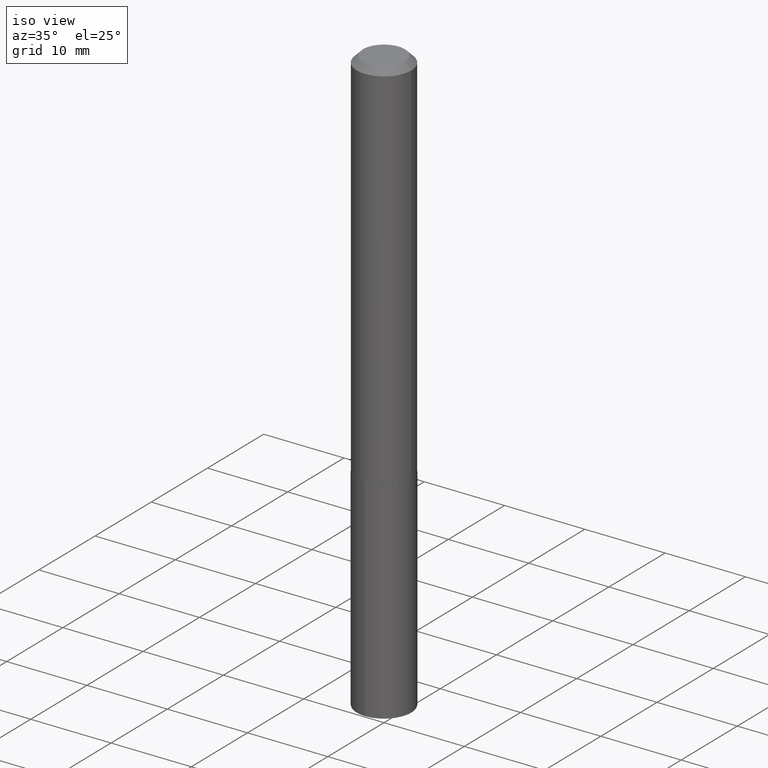
[diagram: clean part render]
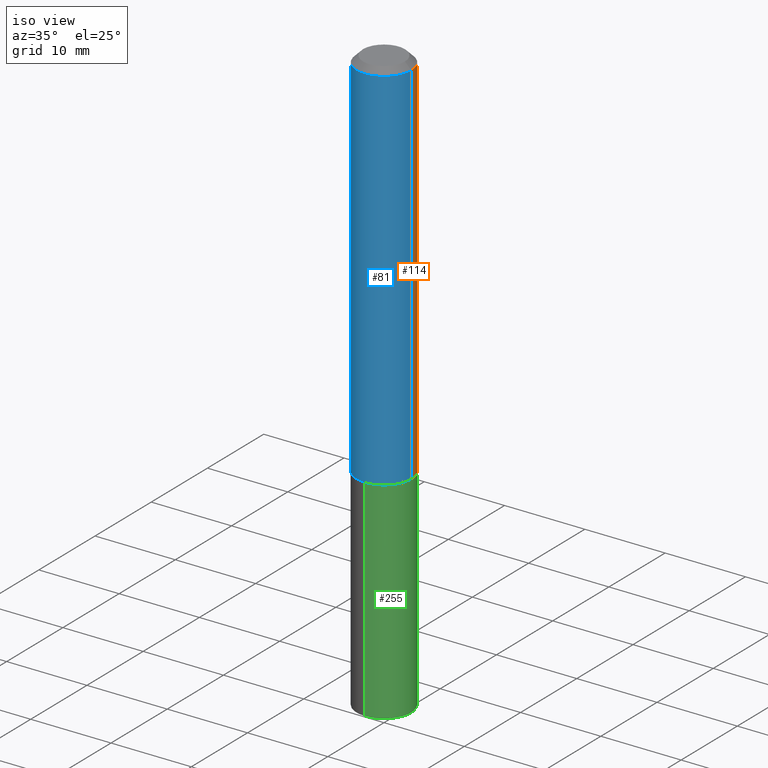
[diagram: same view with three faces highlighted in distinct colors, each labeled with its STEP entity id]
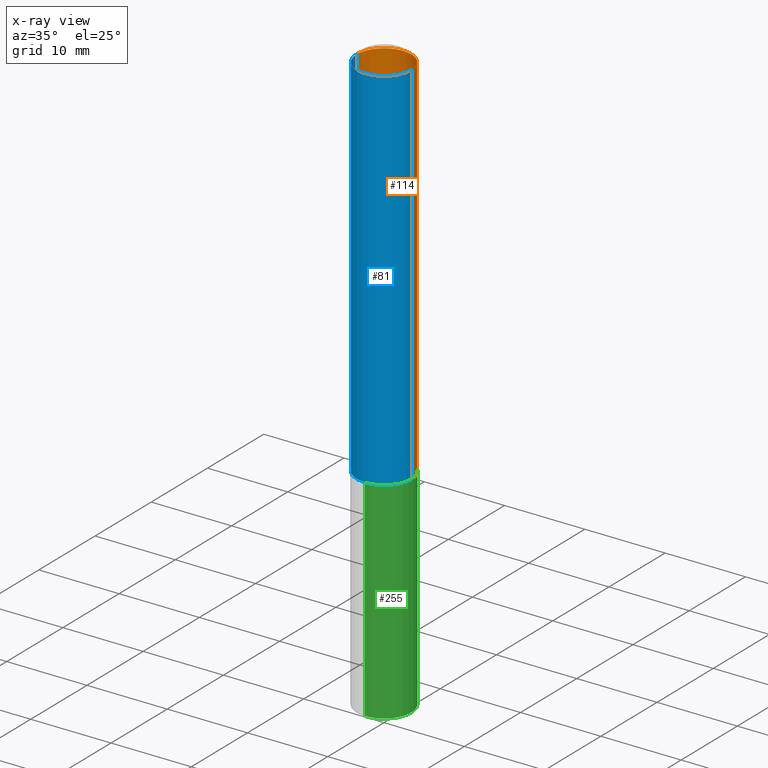
[diagram: x-ray of the same camera — body ghosted, the three highlighted faces saturated]
A machine part, iso view with three faces highlighted in distinct colors.
The next image is the same camera in x-ray (body ghosted, the three faces saturated) — at least one of them is partly hidden behind the body in this view.
Their STEP definitions:

[orange] entity #114 — the highlighted cylindrical surface (edge-blend (fillet) strip) has radius 3.3998 mm, axis along (-0, 0, 1).
#13 = EDGE_CURVE ( 'NONE', #368, #15, #123, .T. ) ;
#15 = VERTEX_POINT ( 'NONE', #282 ) ;
#19 = CYLINDRICAL_SURFACE ( 'NONE', #214, 0.1338500000000001078 ) ;
#21 = FACE_OUTER_BOUND ( 'NONE', #199, .T. ) ;
#48 = DIRECTION ( 'NONE',  ( -2.445468806185136597E-29, 3.491481338843145583E-15, 1.000000000000000000 ) ) ;
#52 = CARTESIAN_POINT ( 'NONE',  ( 4.504553540993022477E-29, -6.431308626149075527E-15, -1.842000000000000526 ) ) ;
#63 = AXIS2_PLACEMENT_3D ( 'NONE', #378, #193, #164 ) ;
#67 = EDGE_CURVE ( 'NONE', #105, #368, #381, .T. ) ;
#102 = VERTEX_POINT ( 'NONE', #205 ) ;
#105 = VERTEX_POINT ( 'NONE', #295 ) ;
#114 = ADVANCED_FACE ( 'NONE', ( #21 ), #19, .T. ) ;
#116 = CARTESIAN_POINT ( 'NONE',  ( 0.1338500000000001078, -9.346695544083075234E-16, 6.526762614402865288E-30 ) ) ;
#123 = CIRCLE ( 'NONE', #63, 0.1338499999999999968 ) ;
#124 = VECTOR ( 'NONE', #242, 39.37007874015748143 ) ;
#130 = CIRCLE ( 'NONE', #372, 0.1338500000000002466 ) ;
#139 = ORIENTED_EDGE ( 'NONE', *, *, #157, .T. ) ;
#149 = DIRECTION ( 'NONE',  ( -2.445468806185136597E-29, 3.491481338843145583E-15, 1.000000000000000000 ) ) ;
#151 = DIRECTION ( 'NONE',  ( -2.445468806185136877E-29, 3.491481338843145188E-15, 1.000000000000000000 ) ) ;
#157 = EDGE_CURVE ( 'NONE', #105, #102, #130, .T. ) ;
#164 = DIRECTION ( 'NONE',  ( 1.000000000000000000, -6.982962677686266711E-15, 0.000000000000000000 ) ) ;
#169 = ORIENTED_EDGE ( 'NONE', *, *, #13, .F. ) ;
#180 = DIRECTION ( 'NONE',  ( 1.000000000000000000, -6.982962677686268288E-15, 0.000000000000000000 ) ) ;
#184 = LINE ( 'NONE', #361, #124 ) ;
#189 = ORIENTED_EDGE ( 'NONE', *, *, #238, .T. ) ;
#193 = DIRECTION ( 'NONE',  ( -2.445468806185136597E-29, 3.491481338843145583E-15, 1.000000000000000000 ) ) ;
#199 = EDGE_LOOP ( 'NONE', ( #139, #189, #169, #318 ) ) ;
#205 = CARTESIAN_POINT ( 'NONE',  ( -0.1338500000000002466, -5.480247174334179676E-15, -1.842000000000000526 ) ) ;
#214 = AXIS2_PLACEMENT_3D ( 'NONE', #264, #48, #355 ) ;
#225 = VECTOR ( 'NONE', #151, 39.37007874015748143 ) ;
#238 = EDGE_CURVE ( 'NONE', #102, #15, #184, .T. ) ;
#242 = DIRECTION ( 'NONE',  ( -2.445468806185136877E-29, 3.491481338843145188E-15, 1.000000000000000000 ) ) ;
#264 = CARTESIAN_POINT ( 'NONE',  ( 0.000000000000000000, 0.000000000000000000, 0.000000000000000000 ) ) ;
#282 = CARTESIAN_POINT ( 'NONE',  ( -0.1338499999999999968, -2.319147257179065674E-15, -0.03125000000000021511 ) ) ;
#295 = CARTESIAN_POINT ( 'NONE',  ( 0.1338500000000002466, -7.365978180557384825E-15, -1.842000000000000526 ) ) ;
#318 = ORIENTED_EDGE ( 'NONE', *, *, #67, .F. ) ;
#355 = DIRECTION ( 'NONE',  ( 1.000000000000000000, -6.982962677686266711E-15, 4.876176775795935793E-29 ) ) ;
#361 = CARTESIAN_POINT ( 'NONE',  ( -0.1338500000000001078, 9.510614518148948646E-16, -6.583994618306197928E-30 ) ) ;
#364 = CARTESIAN_POINT ( 'NONE',  ( 0.1338499999999999968, -1.043778346247155835E-15, -0.03125000000000021511 ) ) ;
#368 = VERTEX_POINT ( 'NONE', #364 ) ;
#372 = AXIS2_PLACEMENT_3D ( 'NONE', #52, #149, #180 ) ;
#378 = CARTESIAN_POINT ( 'NONE',  ( 7.642090019328603538E-31, -1.091087918388490390E-16, -0.03125000000000021511 ) ) ;
#381 = LINE ( 'NONE', #116, #225 ) ;

[blue] entity #81 — the highlighted cylindrical surface (edge-blend (fillet) strip) has radius 3.3998 mm, axis along (-0, 0, 1).
#15 = VERTEX_POINT ( 'NONE', #282 ) ;
#38 = DIRECTION ( 'NONE',  ( 1.000000000000000000, -6.982962677686268288E-15, 0.000000000000000000 ) ) ;
#41 = DIRECTION ( 'NONE',  ( -2.445468806185136597E-29, 3.491481338843145583E-15, 1.000000000000000000 ) ) ;
#56 = CARTESIAN_POINT ( 'NONE',  ( 7.642090019328603538E-31, -1.091087918388490390E-16, -0.03125000000000021511 ) ) ;
#57 = CARTESIAN_POINT ( 'NONE',  ( 4.504553540993022477E-29, -6.431308626149075527E-15, -1.842000000000000526 ) ) ;
#65 = CIRCLE ( 'NONE', #280, 0.1338499999999999968 ) ;
#67 = EDGE_CURVE ( 'NONE', #105, #368, #381, .T. ) ;
#81 = ADVANCED_FACE ( 'NONE', ( #328 ), #82, .T. ) ;
#82 = CYLINDRICAL_SURFACE ( 'NONE', #301, 0.1338500000000001078 ) ;
#102 = VERTEX_POINT ( 'NONE', #205 ) ;
#104 = AXIS2_PLACEMENT_3D ( 'NONE', #57, #41, #38 ) ;
#105 = VERTEX_POINT ( 'NONE', #295 ) ;
#109 = ORIENTED_EDGE ( 'NONE', *, *, #385, .T. ) ;
#112 = DIRECTION ( 'NONE',  ( 1.000000000000000000, -6.982962677686266711E-15, 4.876176775795935793E-29 ) ) ;
#116 = CARTESIAN_POINT ( 'NONE',  ( 0.1338500000000001078, -9.346695544083075234E-16, 6.526762614402865288E-30 ) ) ;
#124 = VECTOR ( 'NONE', #242, 39.37007874015748143 ) ;
#151 = DIRECTION ( 'NONE',  ( -2.445468806185136877E-29, 3.491481338843145188E-15, 1.000000000000000000 ) ) ;
#182 = DIRECTION ( 'NONE',  ( -2.445468806185136597E-29, 3.491481338843145583E-15, 1.000000000000000000 ) ) ;
#184 = LINE ( 'NONE', #361, #124 ) ;
#191 = ORIENTED_EDGE ( 'NONE', *, *, #211, .F. ) ;
#205 = CARTESIAN_POINT ( 'NONE',  ( -0.1338500000000002466, -5.480247174334179676E-15, -1.842000000000000526 ) ) ;
#207 = CIRCLE ( 'NONE', #104, 0.1338500000000002466 ) ;
#211 = EDGE_CURVE ( 'NONE', #15, #368, #65, .T. ) ;
#212 = CARTESIAN_POINT ( 'NONE',  ( 0.000000000000000000, 0.000000000000000000, 0.000000000000000000 ) ) ;
#225 = VECTOR ( 'NONE', #151, 39.37007874015748143 ) ;
#238 = EDGE_CURVE ( 'NONE', #102, #15, #184, .T. ) ;
#242 = DIRECTION ( 'NONE',  ( -2.445468806185136877E-29, 3.491481338843145188E-15, 1.000000000000000000 ) ) ;
#278 = DIRECTION ( 'NONE',  ( 1.000000000000000000, -6.982962677686266711E-15, 0.000000000000000000 ) ) ;
#280 = AXIS2_PLACEMENT_3D ( 'NONE', #56, #182, #278 ) ;
#282 = CARTESIAN_POINT ( 'NONE',  ( -0.1338499999999999968, -2.319147257179065674E-15, -0.03125000000000021511 ) ) ;
#295 = CARTESIAN_POINT ( 'NONE',  ( 0.1338500000000002466, -7.365978180557384825E-15, -1.842000000000000526 ) ) ;
#300 = DIRECTION ( 'NONE',  ( -2.445468806185136597E-29, 3.491481338843145583E-15, 1.000000000000000000 ) ) ;
#301 = AXIS2_PLACEMENT_3D ( 'NONE', #212, #300, #112 ) ;
#313 = EDGE_LOOP ( 'NONE', ( #346, #109, #338, #191 ) ) ;
#328 = FACE_OUTER_BOUND ( 'NONE', #313, .T. ) ;
#338 = ORIENTED_EDGE ( 'NONE', *, *, #67, .T. ) ;
#346 = ORIENTED_EDGE ( 'NONE', *, *, #238, .F. ) ;
#361 = CARTESIAN_POINT ( 'NONE',  ( -0.1338500000000001078, 9.510614518148948646E-16, -6.583994618306197928E-30 ) ) ;
#364 = CARTESIAN_POINT ( 'NONE',  ( 0.1338499999999999968, -1.043778346247155835E-15, -0.03125000000000021511 ) ) ;
#368 = VERTEX_POINT ( 'NONE', #364 ) ;
#381 = LINE ( 'NONE', #116, #225 ) ;
#385 = EDGE_CURVE ( 'NONE', #102, #105, #207, .T. ) ;

[green] entity #255 — the highlighted cylindrical surface (edge-blend (fillet) strip) has radius 3.3998 mm, axis along (-0, 0, 1).
#2 = DIRECTION ( 'NONE',  ( -6.982962677686265133E-15, -1.000000000000000000, 4.081954417130015942E-15 ) ) ;
#23 = CARTESIAN_POINT ( 'NONE',  ( 9.510614518149640872E-16, 0.1338499999999899492, -2.877535000593094860 ) ) ;
#35 = CIRCLE ( 'NONE', #262, 0.1338499999999999968 ) ;
#37 = VERTEX_POINT ( 'NONE', #204 ) ;
#53 = EDGE_CURVE ( 'NONE', #366, #76, #341, .T. ) ;
#54 = DIRECTION ( 'NONE',  ( -6.982962677686265133E-15, -1.000000000000000000, 4.081954417130015942E-15 ) ) ;
#60 = FACE_OUTER_BOUND ( 'NONE', #311, .T. ) ;
#76 = VERTEX_POINT ( 'NONE', #23 ) ;
#80 = LINE ( 'NONE', #234, #382 ) ;
#86 = DIRECTION ( 'NONE',  ( -2.445519446321027074E-29, 3.491408819286292575E-15, 1.000000000000000000 ) ) ;
#88 = CARTESIAN_POINT ( 'NONE',  ( 4.505776275396114718E-29, -6.433054366818497031E-15, -1.842500000000000249 ) ) ;
#91 = VECTOR ( 'NONE', #248, 39.37007874015748143 ) ;
#106 = ORIENTED_EDGE ( 'NONE', *, *, #243, .T. ) ;
#127 = EDGE_CURVE ( 'NONE', #366, #254, #80, .T. ) ;
#136 = AXIS2_PLACEMENT_3D ( 'NONE', #365, #332, #2 ) ;
#147 = DIRECTION ( 'NONE',  ( -2.445519446321027074E-29, 3.491408819286292575E-15, 1.000000000000000000 ) ) ;
#153 = LINE ( 'NONE', #272, #91 ) ;
#194 = EDGE_CURVE ( 'NONE', #254, #37, #35, .T. ) ;
#204 = CARTESIAN_POINT ( 'NONE',  ( 9.510614518149640872E-16, 0.1338499999999935297, -1.842500000000000915 ) ) ;
#222 = ORIENTED_EDGE ( 'NONE', *, *, #127, .F. ) ;
#228 = ORIENTED_EDGE ( 'NONE', *, *, #53, .T. ) ;
#234 = CARTESIAN_POINT ( 'NONE',  ( -9.346695544082615722E-16, -0.1338500000000064361, -1.842499999999999805 ) ) ;
#241 = CYLINDRICAL_SURFACE ( 'NONE', #136, 0.1338499999999999968 ) ;
#243 = EDGE_CURVE ( 'NONE', #76, #37, #153, .T. ) ;
#246 = CARTESIAN_POINT ( 'NONE',  ( -9.346695544082361315E-16, -0.1338500000000100165, -2.877535000593093972 ) ) ;
#248 = DIRECTION ( 'NONE',  ( -2.445519446321027074E-29, 3.491408819286292575E-15, 1.000000000000000000 ) ) ;
#254 = VERTEX_POINT ( 'NONE', #302 ) ;
#255 = ADVANCED_FACE ( 'NONE', ( #60 ), #241, .T. ) ;
#262 = AXIS2_PLACEMENT_3D ( 'NONE', #88, #86, #54 ) ;
#272 = CARTESIAN_POINT ( 'NONE',  ( 9.510614518149390408E-16, 0.1338499999999935575, -1.842500000000000915 ) ) ;
#287 = AXIS2_PLACEMENT_3D ( 'NONE', #353, #386, #298 ) ;
#298 = DIRECTION ( 'NONE',  ( -6.982962677686265133E-15, -1.000000000000000000, 4.081954417130015942E-15 ) ) ;
#302 = CARTESIAN_POINT ( 'NONE',  ( -9.346695544082615722E-16, -0.1338500000000064361, -1.842499999999999805 ) ) ;
#311 = EDGE_LOOP ( 'NONE', ( #228, #106, #340, #222 ) ) ;
#332 = DIRECTION ( 'NONE',  ( -2.445519446321027074E-29, 3.491408819286292575E-15, 1.000000000000000000 ) ) ;
#340 = ORIENTED_EDGE ( 'NONE', *, *, #194, .F. ) ;
#341 = CIRCLE ( 'NONE', #287, 0.1338499999999999968 ) ;
#353 = CARTESIAN_POINT ( 'NONE',  ( 7.036974496969421564E-29, -1.004678469615921796E-14, -2.877535000593094416 ) ) ;
#365 = CARTESIAN_POINT ( 'NONE',  ( 4.505776275396114718E-29, -6.433054366818497031E-15, -1.842500000000000249 ) ) ;
#366 = VERTEX_POINT ( 'NONE', #246 ) ;
#382 = VECTOR ( 'NONE', #147, 39.37007874015748143 ) ;
#386 = DIRECTION ( 'NONE',  ( -2.445519446321027074E-29, 3.491408819286292575E-15, 1.000000000000000000 ) ) ;